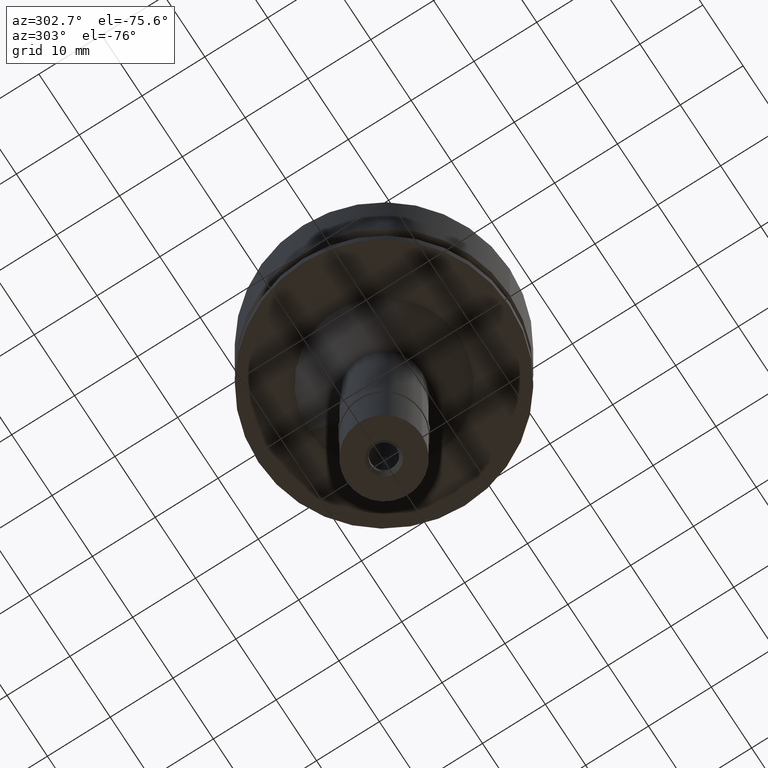
[diagram: clean part render]
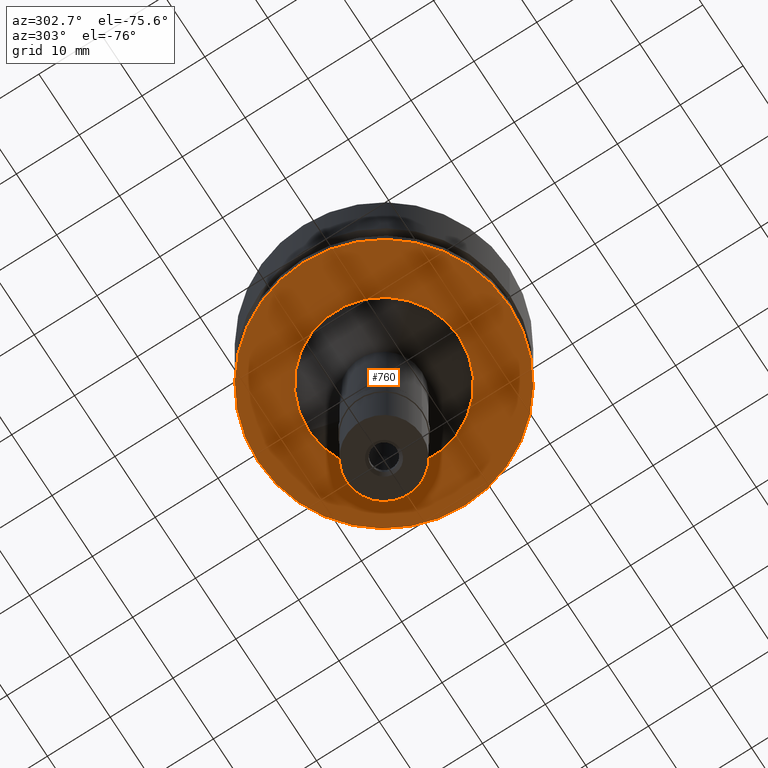
[diagram: same view with one face highlighted and labeled with its STEP entity id]
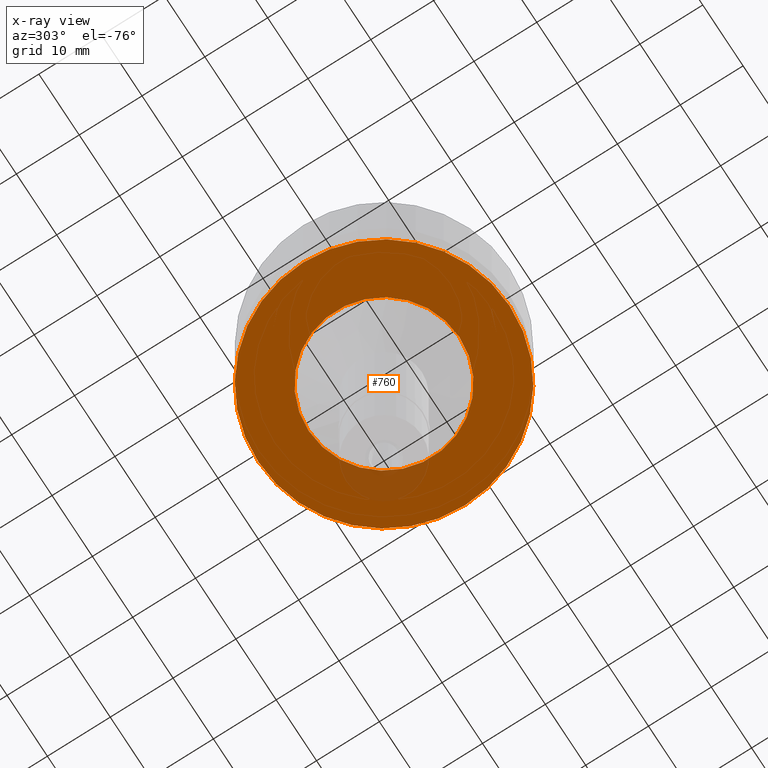
[diagram: x-ray of the same camera — body ghosted, the highlighted face saturated]
A machine part, auxiliary view. The second image highlights one B-rep face of the part: STEP entity #760.
The next image is the same camera in x-ray: the body ghosted, the highlighted face saturated — about 5% of this face is hidden behind the body in this view.
In plain terms, the highlighted planar face has unit normal (0, 0, 1).
Its self-contained STEP definition (entity closure, byte-faithful):
#10 = VERTEX_POINT ( 'NONE', #2657 ) ;
#91 = DIRECTION ( 'NONE',  ( 0.0000000000000000000, 0.0000000000000000000, 1.000000000000000000 ) ) ;
#136 = CARTESIAN_POINT ( 'NONE',  ( 0.0000000000000000000, 0.0000000000000000000, -20.00000000000000000 ) ) ;
#167 = CARTESIAN_POINT ( 'NONE',  ( 0.0000000000000000000, 0.0000000000000000000, -20.00000000000000000 ) ) ;
#202 = EDGE_CURVE ( 'NONE', #2401, #10, #1074, .T. ) ;
#261 = EDGE_LOOP ( 'NONE', ( #1916, #1549 ) ) ;
#266 = AXIS2_PLACEMENT_3D ( 'NONE', #167, #1454, #2250 ) ;
#302 = PLANE ( 'NONE',  #1591 ) ;
#304 = ORIENTED_EDGE ( 'NONE', *, *, #202, .F. ) ;
#491 = ORIENTED_EDGE ( 'NONE', *, *, #2504, .F. ) ;
#654 = AXIS2_PLACEMENT_3D ( 'NONE', #136, #1599, #1202 ) ;
#663 = FACE_OUTER_BOUND ( 'NONE', #1950, .T. ) ;
#760 = ADVANCED_FACE ( 'NONE', ( #663, #2369 ), #302, .F. ) ;
#772 = CARTESIAN_POINT ( 'NONE',  ( 0.0000000000000000000, 20.00000000000000000, -20.00000000000000000 ) ) ;
#1052 = CARTESIAN_POINT ( 'NONE',  ( 0.0000000000000000000, 0.0000000000000000000, -20.00000000000000000 ) ) ;
#1053 = CARTESIAN_POINT ( 'NONE',  ( 0.0000000000000000000, 12.00000000000000000, -20.00000000000000000 ) ) ;
#1074 = CIRCLE ( 'NONE', #1760, 20.00000000000000000 ) ;
#1168 = DIRECTION ( 'NONE',  ( 0.0000000000000000000, 0.0000000000000000000, -1.000000000000000000 ) ) ;
#1202 = DIRECTION ( 'NONE',  ( 0.0000000000000000000, 1.000000000000000000, 0.0000000000000000000 ) ) ;
#1265 = CARTESIAN_POINT ( 'NONE',  ( 0.0000000000000000000, -12.00000000000000000, -20.00000000000000000 ) ) ;
#1267 = EDGE_CURVE ( 'NONE', #2577, #2556, #2320, .T. ) ;
#1367 = CARTESIAN_POINT ( 'NONE',  ( 0.0000000000000000000, 0.0000000000000000000, -20.00000000000000000 ) ) ;
#1454 = DIRECTION ( 'NONE',  ( 0.0000000000000000000, 0.0000000000000000000, 1.000000000000000000 ) ) ;
#1549 = ORIENTED_EDGE ( 'NONE', *, *, #1267, .F. ) ;
#1560 = DIRECTION ( 'NONE',  ( 1.000000000000000000, 0.0000000000000000000, 0.0000000000000000000 ) ) ;
#1591 = AXIS2_PLACEMENT_3D ( 'NONE', #1966, #91, #1560 ) ;
#1599 = DIRECTION ( 'NONE',  ( 0.0000000000000000000, 0.0000000000000000000, -1.000000000000000000 ) ) ;
#1760 = AXIS2_PLACEMENT_3D ( 'NONE', #1052, #2326, #1864 ) ;
#1838 = CIRCLE ( 'NONE', #266, 20.00000000000000000 ) ;
#1847 = CIRCLE ( 'NONE', #654, 12.00000000000000000 ) ;
#1864 = DIRECTION ( 'NONE',  ( 0.0000000000000000000, 1.000000000000000000, 0.0000000000000000000 ) ) ;
#1916 = ORIENTED_EDGE ( 'NONE', *, *, #2408, .F. ) ;
#1950 = EDGE_LOOP ( 'NONE', ( #304, #491 ) ) ;
#1966 = CARTESIAN_POINT ( 'NONE',  ( 0.0000000000000000000, 0.0000000000000000000, -20.00000000000000000 ) ) ;
#2239 = AXIS2_PLACEMENT_3D ( 'NONE', #1367, #1168, #2419 ) ;
#2250 = DIRECTION ( 'NONE',  ( 0.0000000000000000000, -1.000000000000000000, 0.0000000000000000000 ) ) ;
#2320 = CIRCLE ( 'NONE', #2239, 12.00000000000000000 ) ;
#2326 = DIRECTION ( 'NONE',  ( 0.0000000000000000000, 0.0000000000000000000, 1.000000000000000000 ) ) ;
#2369 = FACE_BOUND ( 'NONE', #261, .T. ) ;
#2401 = VERTEX_POINT ( 'NONE', #772 ) ;
#2408 = EDGE_CURVE ( 'NONE', #2556, #2577, #1847, .T. ) ;
#2419 = DIRECTION ( 'NONE',  ( 0.0000000000000000000, -1.000000000000000000, 0.0000000000000000000 ) ) ;
#2504 = EDGE_CURVE ( 'NONE', #10, #2401, #1838, .T. ) ;
#2556 = VERTEX_POINT ( 'NONE', #1053 ) ;
#2577 = VERTEX_POINT ( 'NONE', #1265 ) ;
#2657 = CARTESIAN_POINT ( 'NONE',  ( 0.0000000000000000000, -20.00000000000000000, -20.00000000000000000 ) ) ;